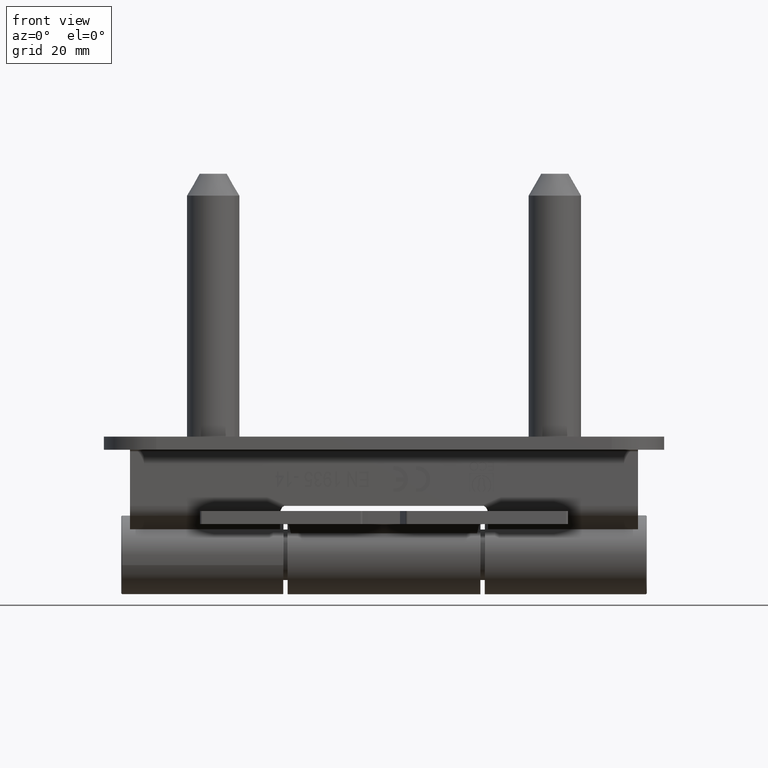
[diagram: clean part render]
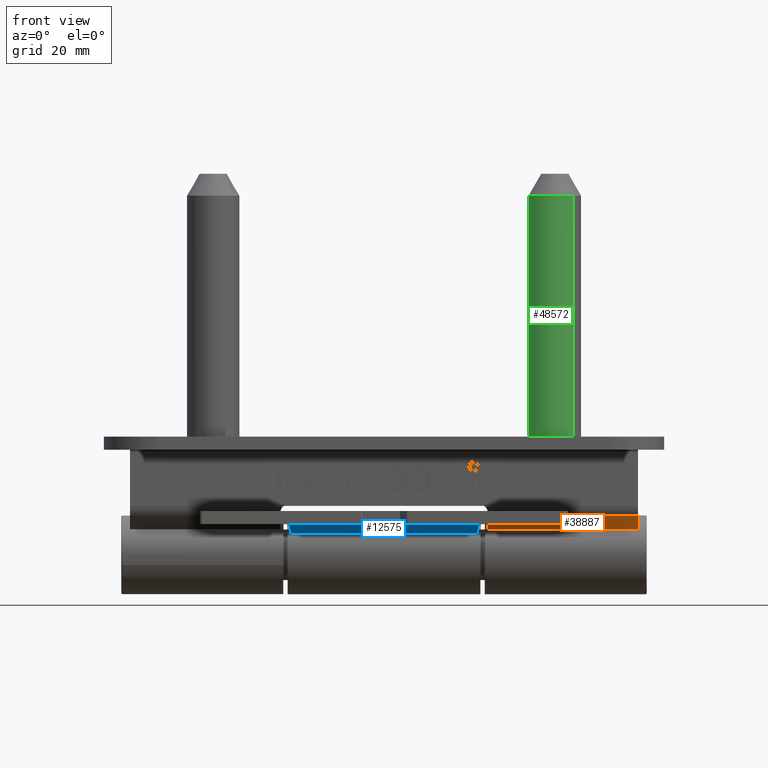
[diagram: same view with three faces highlighted in distinct colors, each labeled with its STEP entity id]
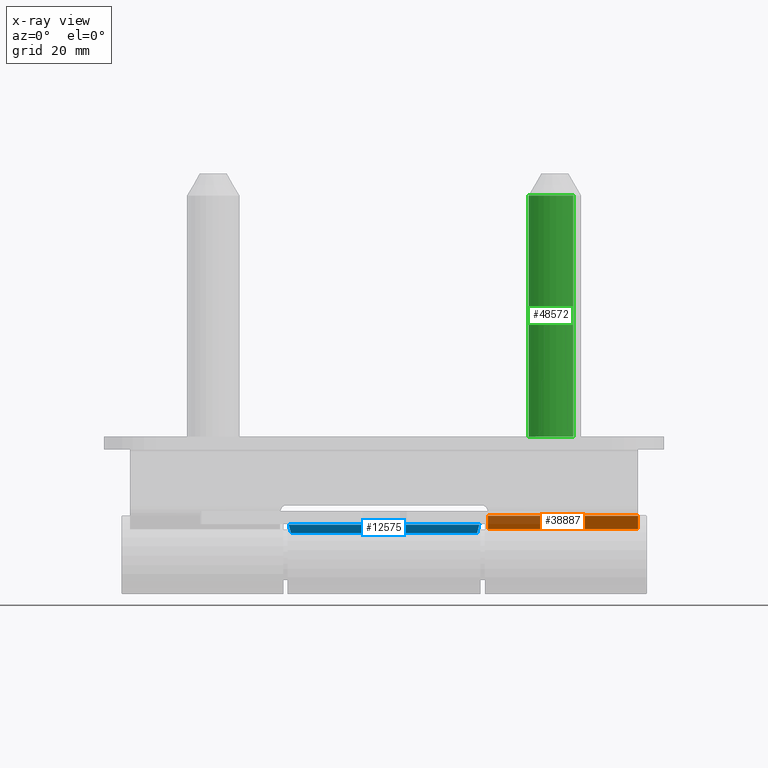
[diagram: x-ray of the same camera — body ghosted, the three highlighted faces saturated]
A machine part, front view with three faces highlighted in distinct colors.
The next image is the same camera in x-ray (body ghosted, the three faces saturated) — at least one of them is partly hidden behind the body in this view.
Their STEP definitions:

[orange] entity #38887 — the highlighted planar face has unit normal (0, 0.7575, 0.6528).
#2602 = CARTESIAN_POINT ( 'NONE',  ( -21.84876091746160753, -23.75000000000000000, 18.09920602515077448 ) ) ;
#6251 = VECTOR ( 'NONE', #42884, 1000.000000000000114 ) ;
#6256 = CARTESIAN_POINT ( 'NONE',  ( -21.84876091746160043, 64.00000000000000000, 18.09920602515077448 ) ) ;
#7565 = VERTEX_POINT ( 'NONE', #8232 ) ;
#8232 = CARTESIAN_POINT ( 'NONE',  ( -21.84876091746160753, -58.00000000000000000, 18.09920602515076737 ) ) ;
#8270 = DIRECTION ( 'NONE',  ( -0.6528387823126776679, 0.000000000000000000, 0.7574968807252610015 ) ) ;
#9864 = EDGE_CURVE ( 'NONE', #47776, #14621, #41840, .T. ) ;
#10222 = LINE ( 'NONE', #6256, #24305 ) ;
#10867 = ORIENTED_EDGE ( 'NONE', *, *, #23060, .F. ) ;
#11534 = VERTEX_POINT ( 'NONE', #42359 ) ;
#12224 = CARTESIAN_POINT ( 'NONE',  ( -21.72750935782423554, 64.00000000000000000, 17.95851634693801202 ) ) ;
#12738 = PLANE ( 'NONE',  #31952 ) ;
#14621 = VERTEX_POINT ( 'NONE', #2602 ) ;
#18862 = CARTESIAN_POINT ( 'NONE',  ( 2.553383255513082428, -58.00000000000004263, -10.21490244211130793 ) ) ;
#19221 = VECTOR ( 'NONE', #37258, 1000.000000000000114 ) ;
#23060 = EDGE_CURVE ( 'NONE', #7565, #11534, #31062, .T. ) ;
#24305 = VECTOR ( 'NONE', #31378, 1000.000000000000000 ) ;
#27201 = ORIENTED_EDGE ( 'NONE', *, *, #45608, .F. ) ;
#28618 = CARTESIAN_POINT ( 'NONE',  ( -24.48820563809802309, -23.74999999999999289, 21.16178624694165222 ) ) ;
#28887 = DIRECTION ( 'NONE',  ( -0.7574968807252610015, -6.162975822039155825E-32, -0.6528387823126776679 ) ) ;
#29414 = CARTESIAN_POINT ( 'NONE',  ( -21.72750935782423909, -23.74999999999999289, 17.95851634693801557 ) ) ;
#29859 = DIRECTION ( 'NONE',  ( -2.813920346397899413E-33, -1.000000000000000000, 0.000000000000000000 ) ) ;
#31062 = LINE ( 'NONE', #18862, #19221 ) ;
#31378 = DIRECTION ( 'NONE',  ( -2.813920346397899413E-33, -1.000000000000000000, 0.000000000000000000 ) ) ;
#31952 = AXIS2_PLACEMENT_3D ( 'NONE', #12224, #28887, #8270 ) ;
#32572 = EDGE_CURVE ( 'NONE', #47776, #11534, #45520, .T. ) ;
#33328 = VECTOR ( 'NONE', #29859, 1000.000000000000000 ) ;
#34107 = ORIENTED_EDGE ( 'NONE', *, *, #32572, .T. ) ;
#36131 = ORIENTED_EDGE ( 'NONE', *, *, #9864, .F. ) ;
#37073 = EDGE_LOOP ( 'NONE', ( #34107, #10867, #27201, #36131 ) ) ;
#37258 = DIRECTION ( 'NONE',  ( -0.6528387823126771128, 6.633252920535645158E-16, 0.7574968807252613345 ) ) ;
#38887 = ADVANCED_FACE ( 'NONE', ( #49020 ), #12738, .F. ) ;
#41840 = LINE ( 'NONE', #29414, #6251 ) ;
#42359 = CARTESIAN_POINT ( 'NONE',  ( -24.48820563809802664, -58.00000000000001421, 21.16178624694164512 ) ) ;
#42884 = DIRECTION ( 'NONE',  ( 0.6528387823126776679, -1.232595164407830809E-32, -0.7574968807252608904 ) ) ;
#45520 = LINE ( 'NONE', #48967, #33328 ) ;
#45608 = EDGE_CURVE ( 'NONE', #14621, #7565, #10222, .T. ) ;
#47776 = VERTEX_POINT ( 'NONE', #28618 ) ;
#48967 = CARTESIAN_POINT ( 'NONE',  ( -24.48820563809801953, 64.00000000000000000, 21.16178624694163801 ) ) ;
#49020 = FACE_OUTER_BOUND ( 'NONE', #37073, .T. ) ;

[blue] entity #12575 — the highlighted planar face has unit normal (-0, -0.6698, -0.7426).
#3486 = VERTEX_POINT ( 'NONE', #6679 ) ;
#4278 = EDGE_CURVE ( 'NONE', #22183, #3486, #43875, .T. ) ;
#4279 = DIRECTION ( 'NONE',  ( -0.7425531167507187780, -0.6697871817255041105, 0.000000000000000000 ) ) ;
#4352 = LINE ( 'NONE', #49633, #49538 ) ;
#4424 = ORIENTED_EDGE ( 'NONE', *, *, #4278, .F. ) ;
#4563 = CARTESIAN_POINT ( 'NONE',  ( -9.857291994554131520, -6.871276558375360111, 21.74921220509393294 ) ) ;
#5680 = DIRECTION ( 'NONE',  ( -0.000000000000000000, 0.000000000000000000, -1.000000000000000000 ) ) ;
#6679 = CARTESIAN_POINT ( 'NONE',  ( -9.857291994554127967, -6.871276558375360111, -21.74921220509391873 ) ) ;
#7318 = LINE ( 'NONE', #51779, #21529 ) ;
#8528 = DIRECTION ( 'NONE',  ( -0.6697871817255041105, 0.7425531167507187780, 0.000000000000000000 ) ) ;
#11179 = PLANE ( 'NONE',  #50846 ) ;
#11310 = VECTOR ( 'NONE', #33000, 1000.000000000000000 ) ;
#11868 = ORIENTED_EDGE ( 'NONE', *, *, #34594, .F. ) ;
#12575 = ADVANCED_FACE ( 'NONE', ( #47451 ), #11179, .T. ) ;
#14646 = VERTEX_POINT ( 'NONE', #30945 ) ;
#15795 = CARTESIAN_POINT ( 'NONE',  ( -9.857291994554131520, -6.871276558375360111, 42.00000000000000000 ) ) ;
#18129 = EDGE_CURVE ( 'NONE', #3486, #14646, #7318, .T. ) ;
#20964 = CARTESIAN_POINT ( 'NONE',  ( -9.857291994554131520, -6.871276558375360111, 42.00000000000000000 ) ) ;
#21033 = DIRECTION ( 'NONE',  ( -0.7319467401631388759, -0.6602201690463284089, 0.1684140669569851589 ) ) ;
#21529 = VECTOR ( 'NONE', #30406, 1000.000000000000114 ) ;
#22183 = VERTEX_POINT ( 'NONE', #4563 ) ;
#29754 = LINE ( 'NONE', #45909, #36143 ) ;
#30406 = DIRECTION ( 'NONE',  ( 0.7319467401631388759, 0.6602201690463284089, 0.1684140669569851589 ) ) ;
#30945 = CARTESIAN_POINT ( 'NONE',  ( -7.687658823344730052, -4.914254960403455108, -21.24999999999997158 ) ) ;
#31767 = ORIENTED_EDGE ( 'NONE', *, *, #45892, .T. ) ;
#33000 = DIRECTION ( 'NONE',  ( -0.000000000000000000, 0.000000000000000000, -1.000000000000000000 ) ) ;
#34594 = EDGE_CURVE ( 'NONE', #49466, #22183, #4352, .T. ) ;
#36143 = VECTOR ( 'NONE', #5680, 1000.000000000000000 ) ;
#39765 = CARTESIAN_POINT ( 'NONE',  ( -7.687658823344720282, -4.914254960403451555, 21.25000000000000000 ) ) ;
#43875 = LINE ( 'NONE', #15795, #11310 ) ;
#45892 = EDGE_CURVE ( 'NONE', #49466, #14646, #29754, .T. ) ;
#45909 = CARTESIAN_POINT ( 'NONE',  ( -7.687658823344733605, -4.914254960403451555, 42.00000000000000000 ) ) ;
#46847 = EDGE_LOOP ( 'NONE', ( #4424, #11868, #31767, #48948 ) ) ;
#47451 = FACE_OUTER_BOUND ( 'NONE', #46847, .T. ) ;
#48948 = ORIENTED_EDGE ( 'NONE', *, *, #18129, .F. ) ;
#49466 = VERTEX_POINT ( 'NONE', #39765 ) ;
#49538 = VECTOR ( 'NONE', #21033, 1000.000000000000114 ) ;
#49633 = CARTESIAN_POINT ( 'NONE',  ( -10.94724434990624218, -7.854419851209247128, 22.00000000000000000 ) ) ;
#50846 = AXIS2_PLACEMENT_3D ( 'NONE', #20964, #8528, #4279 ) ;
#51779 = CARTESIAN_POINT ( 'NONE',  ( -10.94724434990624395, -7.854419851209250680, -22.00000000000000000 ) ) ;

[green] entity #48572 — the highlighted cylindrical surface (edge-blend (fillet) strip) has radius 6 mm, axis along (0, 0, 1).
#4666 = DIRECTION ( 'NONE',  ( -1.691070255701901416E-17, -1.000000000000000000, -4.432492115537240686E-16 ) ) ;
#4738 = ORIENTED_EDGE ( 'NONE', *, *, #31829, .F. ) ;
#6525 = ORIENTED_EDGE ( 'NONE', *, *, #50113, .T. ) ;
#8392 = DIRECTION ( 'NONE',  ( -1.691070255701901416E-17, -1.000000000000000000, -4.432492115537240686E-16 ) ) ;
#8644 = CARTESIAN_POINT ( 'NONE',  ( 3.066256431201245146E-15, 2.659495269322345595E-15, 6.000000000000015099 ) ) ;
#9268 = AXIS2_PLACEMENT_3D ( 'NONE', #17013, #45095, #16767 ) ;
#9341 = VERTEX_POINT ( 'NONE', #16838 ) ;
#14783 = CIRCLE ( 'NONE', #30847, 6.000000000000015099 ) ;
#16767 = DIRECTION ( 'NONE',  ( -3.885780586188039017E-16, -4.432492115537231318E-16, -1.000000000000000000 ) ) ;
#16838 = CARTESIAN_POINT ( 'NONE',  ( 3.236300116782331315E-14, 60.00000000000010658, -5.999999999999900524 ) ) ;
#17013 = CARTESIAN_POINT ( 'NONE',  ( 0.000000000000000000, 0.000000000000000000, 0.000000000000000000 ) ) ;
#17093 = CARTESIAN_POINT ( 'NONE',  ( 2.416021864497921806E-15, 5.000000000000000888, 6.000000000000007994 ) ) ;
#17567 = DIRECTION ( 'NONE',  ( -1.691070255701901416E-17, -1.000000000000000000, -4.432492115537240686E-16 ) ) ;
#19855 = EDGE_CURVE ( 'NONE', #31870, #44253, #44492, .T. ) ;
#20805 = DIRECTION ( 'NONE',  ( -3.885780586188041482E-16, -4.336808689942006889E-16, -1.000000000000000000 ) ) ;
#21223 = VECTOR ( 'NONE', #35406, 1000.000000000000000 ) ;
#22703 = LINE ( 'NONE', #30635, #21223 ) ;
#24563 = EDGE_LOOP ( 'NONE', ( #4738, #37331, #6525, #45822 ) ) ;
#25016 = AXIS2_PLACEMENT_3D ( 'NONE', #44898, #4666, #20805 ) ;
#29495 = DIRECTION ( 'NONE',  ( -3.885780586188041482E-16, 0.000000000000000000, -1.000000000000000000 ) ) ;
#30635 = CARTESIAN_POINT ( 'NONE',  ( -2.331468351712829129E-15, -2.659495269322345595E-15, -6.000000000000015099 ) ) ;
#30642 = CARTESIAN_POINT ( 'NONE',  ( 3.615854264303923925E-15, 60.00000000000010658, 6.000000000000114575 ) ) ;
#30847 = AXIS2_PLACEMENT_3D ( 'NONE', #45641, #17567, #29495 ) ;
#31829 = EDGE_CURVE ( 'NONE', #51046, #31870, #48903, .T. ) ;
#31870 = VERTEX_POINT ( 'NONE', #17093 ) ;
#33444 = CYLINDRICAL_SURFACE ( 'NONE', #9268, 6.000000000000015099 ) ;
#34619 = CARTESIAN_POINT ( 'NONE',  ( -1.512126759439317281E-15, 5.000000000000007105, -6.000000000000011546 ) ) ;
#35406 = DIRECTION ( 'NONE',  ( -1.691070255701901416E-17, -1.000000000000000000, -4.432492115537240686E-16 ) ) ;
#35412 = EDGE_CURVE ( 'NONE', #51046, #9341, #14783, .T. ) ;
#37331 = ORIENTED_EDGE ( 'NONE', *, *, #35412, .T. ) ;
#41828 = VECTOR ( 'NONE', #8392, 1000.000000000000000 ) ;
#42154 = FACE_OUTER_BOUND ( 'NONE', #24563, .T. ) ;
#44253 = VERTEX_POINT ( 'NONE', #34619 ) ;
#44492 = CIRCLE ( 'NONE', #25016, 6.000000000000015099 ) ;
#44898 = CARTESIAN_POINT ( 'NONE',  ( -2.081668171172168513E-14, 5.000000000000004441, 2.775557561562891351E-14 ) ) ;
#45095 = DIRECTION ( 'NONE',  ( -1.691070255701901416E-17, -1.000000000000000000, -4.432492115537240686E-16 ) ) ;
#45641 = CARTESIAN_POINT ( 'NONE',  ( 3.469446951953614189E-14, 60.00000000000010658, 1.144917494144692682E-13 ) ) ;
#45822 = ORIENTED_EDGE ( 'NONE', *, *, #19855, .F. ) ;
#48572 = ADVANCED_FACE ( 'NONE', ( #42154 ), #33444, .T. ) ;
#48903 = LINE ( 'NONE', #8644, #41828 ) ;
#50113 = EDGE_CURVE ( 'NONE', #9341, #44253, #22703, .T. ) ;
#51046 = VERTEX_POINT ( 'NONE', #30642 ) ;